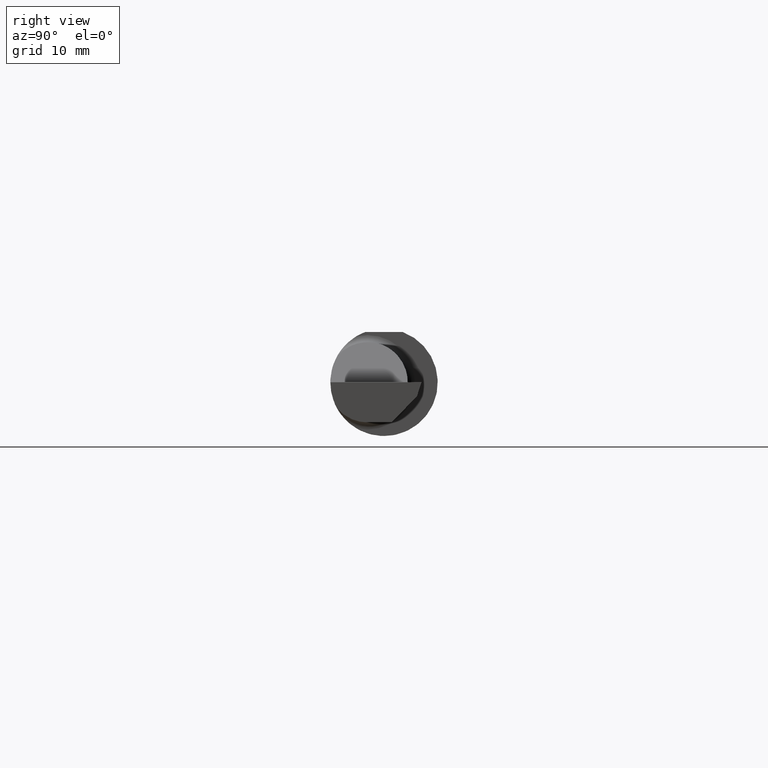
[diagram: clean part render]
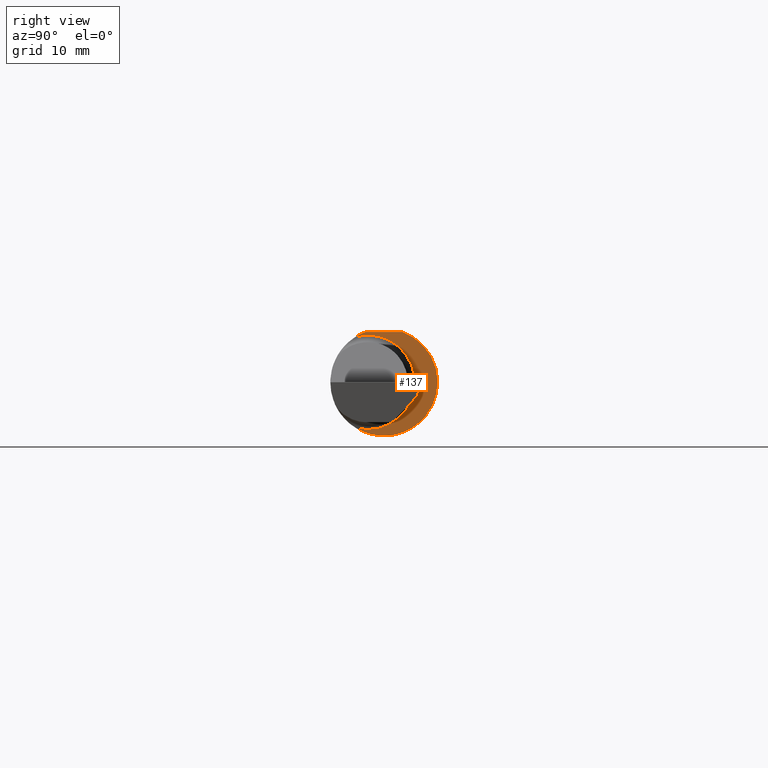
[diagram: same view with one face highlighted and labeled with its STEP entity id]
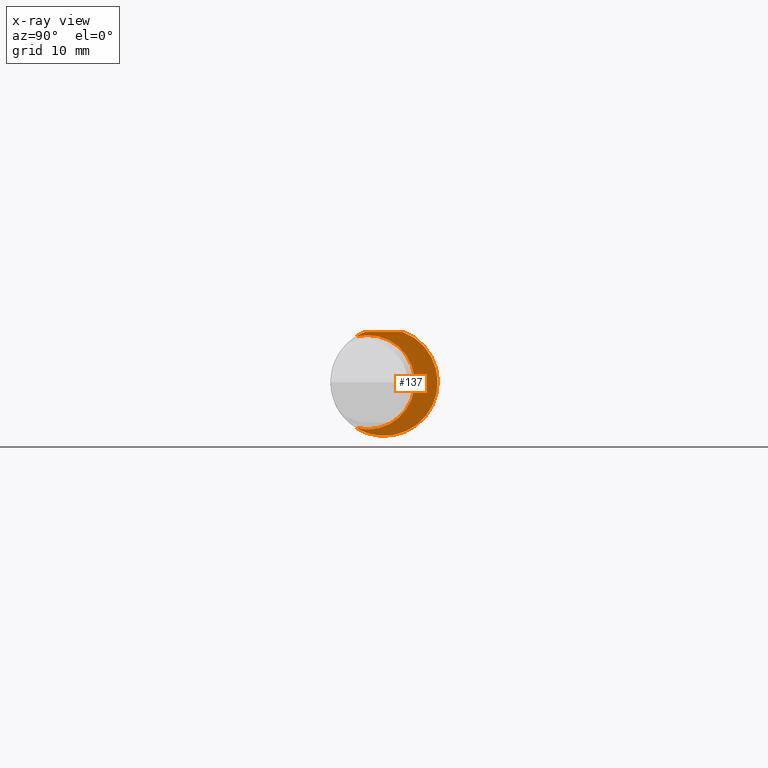
[diagram: x-ray of the same camera — body ghosted, the highlighted face saturated]
A machine part, right view. The second image highlights one B-rep face of the part: STEP entity #137.
The next image is the same camera in x-ray: the body ghosted, the highlighted face saturated — about 3% of this face is hidden behind the body in this view.
In plain terms, the highlighted planar face has unit normal (1, 0, 0).
Its self-contained STEP definition (entity closure, byte-faithful):
#33 = VECTOR ( 'NONE', #134, 39.37007874015748143 ) ;
#36 = VERTEX_POINT ( 'NONE', #385 ) ;
#56 = DIRECTION ( 'NONE',  ( 0.000000000000000000, -1.000000000000000000, 0.000000000000000000 ) ) ;
#74 = VERTEX_POINT ( 'NONE', #433 ) ;
#101 = AXIS2_PLACEMENT_3D ( 'NONE', #397, #199, #394 ) ;
#105 = EDGE_CURVE ( 'NONE', #74, #36, #482, .T. ) ;
#112 = DIRECTION ( 'NONE',  ( 1.000000000000000000, 6.829619984160658046E-18, 0.000000000000000000 ) ) ;
#134 = DIRECTION ( 'NONE',  ( 6.829619984160658046E-18, -1.000000000000000000, 1.438723400918613551E-16 ) ) ;
#137 = ADVANCED_FACE ( 'NONE', ( #484 ), #431, .T. ) ;
#145 = CIRCLE ( 'NONE', #101, 0.1873499999999999888 ) ;
#159 = EDGE_CURVE ( 'NONE', #210, #74, #277, .T. ) ;
#160 = EDGE_LOOP ( 'NONE', ( #226, #421, #167, #508 ) ) ;
#167 = ORIENTED_EDGE ( 'NONE', *, *, #193, .T. ) ;
#181 = DIRECTION ( 'NONE',  ( -6.829619984160658046E-18, 1.000000000000000000, 0.000000000000000000 ) ) ;
#193 = EDGE_CURVE ( 'NONE', #36, #545, #145, .T. ) ;
#199 = DIRECTION ( 'NONE',  ( 1.000000000000000000, 6.829619984160658046E-18, 0.000000000000000000 ) ) ;
#209 = DIRECTION ( 'NONE',  ( 0.000000000000000000, 1.000000000000000000, 0.000000000000000000 ) ) ;
#210 = VERTEX_POINT ( 'NONE', #340 ) ;
#226 = ORIENTED_EDGE ( 'NONE', *, *, #159, .T. ) ;
#254 = AXIS2_PLACEMENT_3D ( 'NONE', #493, #112, #209 ) ;
#277 = CIRCLE ( 'NONE', #254, 0.1873499999999999888 ) ;
#283 = DIRECTION ( 'NONE',  ( 1.000000000000000000, 6.829619984160658046E-18, 0.000000000000000000 ) ) ;
#294 = CARTESIAN_POINT ( 'NONE',  ( 1.350000000000000089, -0.09715400696864118224, 0.1601908905959924245 ) ) ;
#302 = AXIS2_PLACEMENT_3D ( 'NONE', #437, #283, #181 ) ;
#340 = CARTESIAN_POINT ( 'NONE',  ( 1.350000000000000089, -0.09715400696864118224, -0.1601908905959924245 ) ) ;
#374 = CARTESIAN_POINT ( 'NONE',  ( 1.350000000000000089, 0.2373500000000000332, 0.1753499999999999504 ) ) ;
#385 = CARTESIAN_POINT ( 'NONE',  ( 1.350000000000000089, -0.06597272163553659363, 0.1753499999999999781 ) ) ;
#394 = DIRECTION ( 'NONE',  ( 0.000000000000000000, 1.000000000000000000, 0.000000000000000000 ) ) ;
#397 = CARTESIAN_POINT ( 'NONE',  ( 1.350000000000000089, 0.000000000000000000, 0.000000000000000000 ) ) ;
#421 = ORIENTED_EDGE ( 'NONE', *, *, #105, .T. ) ;
#431 = PLANE ( 'NONE',  #302 ) ;
#433 = CARTESIAN_POINT ( 'NONE',  ( 1.350000000000000089, 0.06597272163553663527, 0.1753499999999999781 ) ) ;
#437 = CARTESIAN_POINT ( 'NONE',  ( 1.350000000000000089, 0.1076499999999999402, 0.000000000000000000 ) ) ;
#441 = AXIS2_PLACEMENT_3D ( 'NONE', #623, #476, #56 ) ;
#476 = DIRECTION ( 'NONE',  ( -1.000000000000000000, -6.829619984160658046E-18, -0.000000000000000000 ) ) ;
#482 = LINE ( 'NONE', #374, #33 ) ;
#484 = FACE_OUTER_BOUND ( 'NONE', #160, .T. ) ;
#493 = CARTESIAN_POINT ( 'NONE',  ( 1.350000000000000089, 0.000000000000000000, 0.000000000000000000 ) ) ;
#508 = ORIENTED_EDGE ( 'NONE', *, *, #563, .T. ) ;
#545 = VERTEX_POINT ( 'NONE', #294 ) ;
#554 = CIRCLE ( 'NONE', #441, 0.1650499999999999468 ) ;
#563 = EDGE_CURVE ( 'NONE', #545, #210, #554, .T. ) ;
#623 = CARTESIAN_POINT ( 'NONE',  ( 1.350000000000000089, -0.05740000000000000657, 0.000000000000000000 ) ) ;